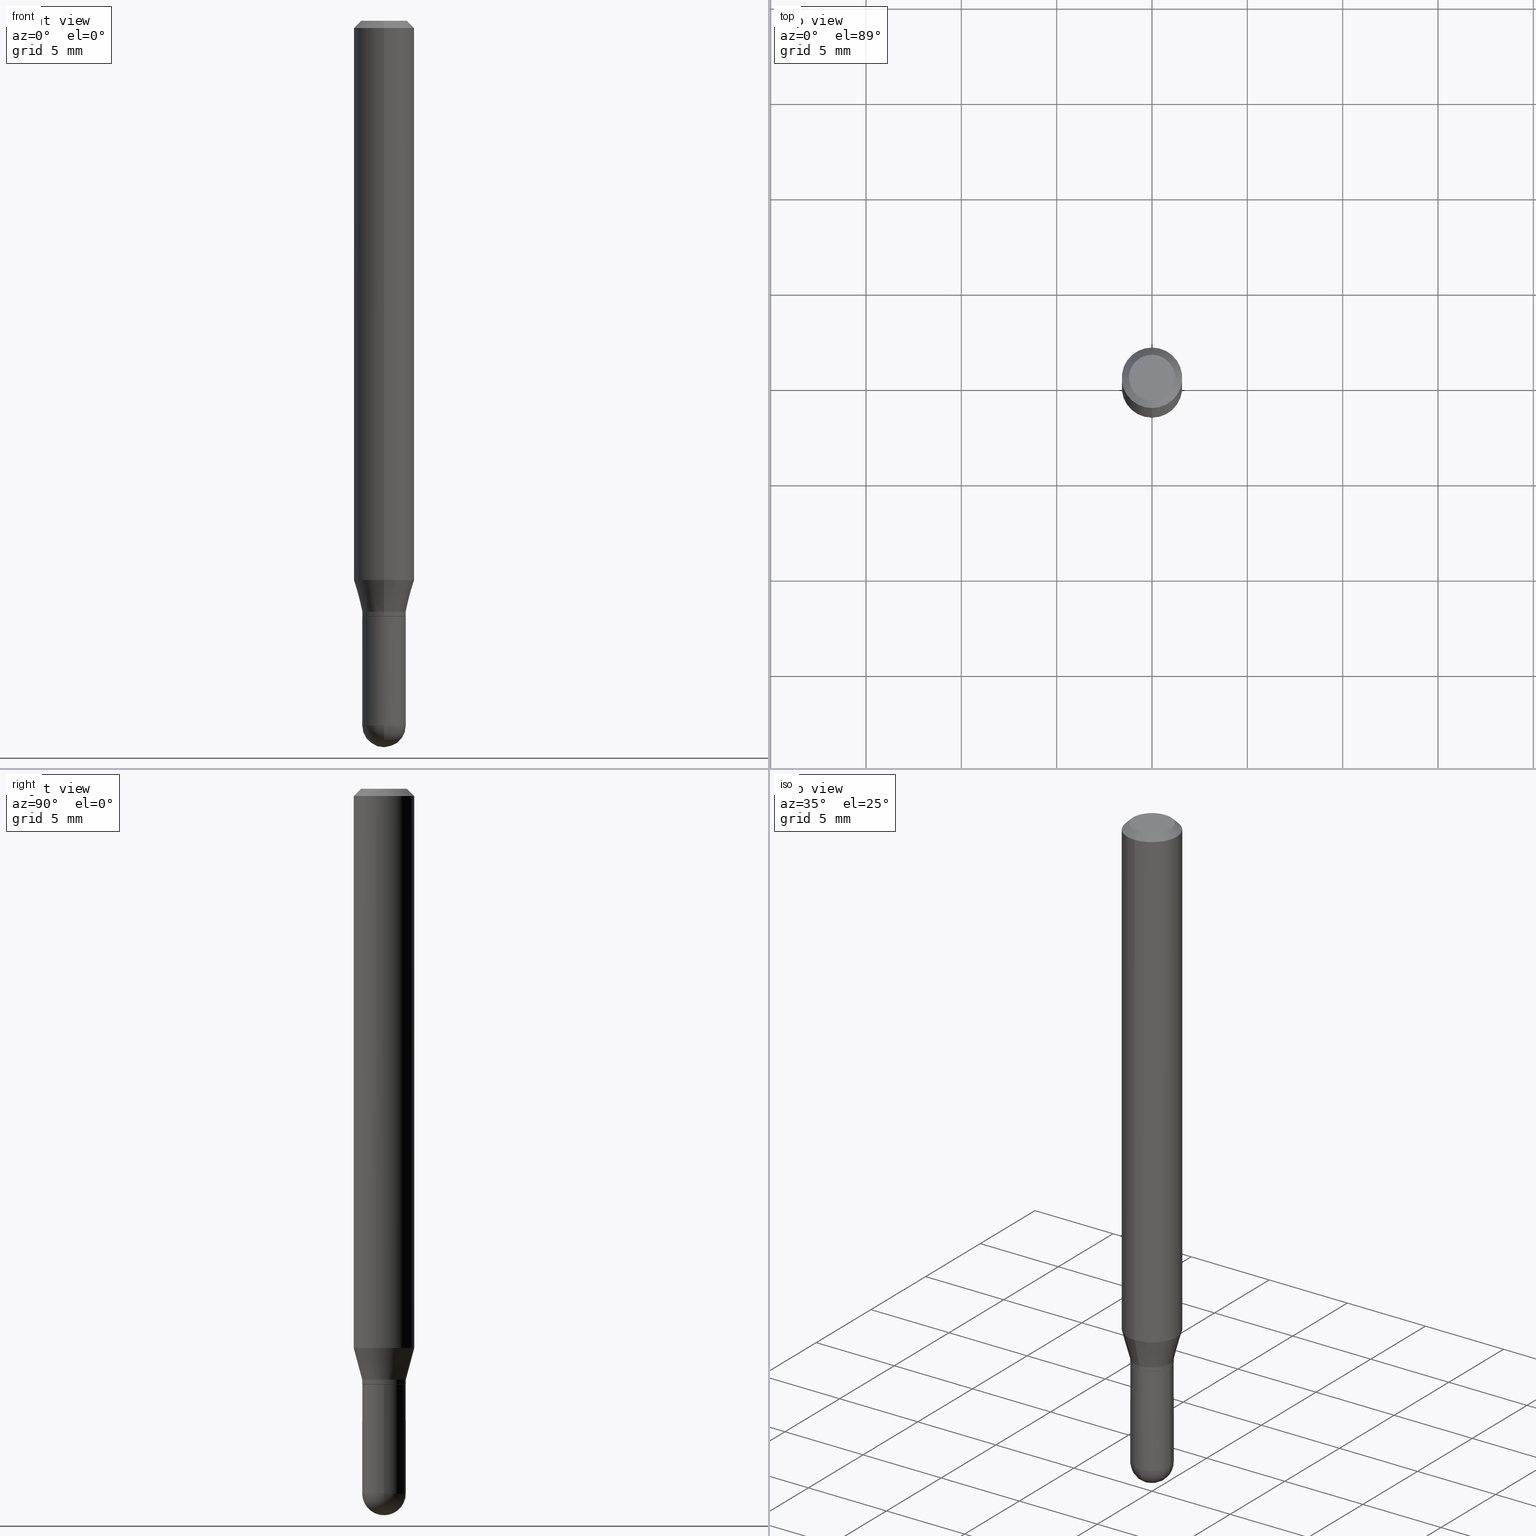
[diagram: canonical four-view strip — front | top / right | iso, engineering-drawing reading convention]
A machine part, canonical four-view strip (front | top / right | iso — engineering-drawing reading convention). The complete STEP part file that produces these views, byte-faithful:
ISO-10303-21;
HEADER;
FILE_DESCRIPTION (( 'STEP AP203' ),
    '1' );
FILE_NAME ('00944.STEP',
    '2024-03-07T19:06:21',
    ( '' ),
    ( '' ),
    'SwSTEP 2.0',
    'SolidWorks 2023',
    '' );
FILE_SCHEMA (( 'CONFIG_CONTROL_DESIGN' ));
ENDSEC;

DATA;
#1 = DIRECTION ( 'NONE',  ( -2.445450573677672764E-29, 3.491507448831563559E-15, 1.000000000000000000 ) ) ;
#2 = EDGE_CURVE ( 'NONE', #341, #457, #215, .T. ) ;
#3 = DIRECTION ( 'NONE',  ( 2.445450573677672483E-29, -3.491507448831563559E-15, -1.000000000000000000 ) ) ;
#4 = PERSON_AND_ORGANIZATION_ROLE ( 'design_supplier' ) ;
#5 = ORIENTED_EDGE ( 'NONE', *, *, #12, .T. ) ;
#6 =( NAMED_UNIT ( * ) PLANE_ANGLE_UNIT ( ) SI_UNIT ( $, .RADIAN. ) );
#7 = CARTESIAN_POINT ( 'NONE',  ( 3.558157112999374623E-29, -5.080105348016777334E-15, -1.455000000000000293 ) ) ;
#8 = AXIS2_PLACEMENT_3D ( 'NONE', #91, #414, #449 ) ;
#9 = PERSON_AND_ORGANIZATION ( #242, #185 ) ;
#10 = DIRECTION ( 'NONE',  ( -2.445468806185136597E-29, 3.491481338843145583E-15, 1.000000000000000000 ) ) ;
#11 = DIRECTION ( 'NONE',  ( -6.982962677686265922E-15, -1.000000000000000000, 3.491507448831563165E-15 ) ) ;
#12 = EDGE_CURVE ( 'NONE', #103, #505, #108, .T. ) ;
#13 = CARTESIAN_POINT ( 'NONE',  ( -0.04500000000000001221, -4.367569466304877886E-15, -1.455000000000000293 ) ) ;
#14 = APPLICATION_CONTEXT ( 'configuration controlled 3d designs of mechanical parts and assemblies' ) ;
#15 = SPHERICAL_SURFACE ( 'NONE', #217, 0.04499999999999998446 ) ;
#16 = ORIENTED_EDGE ( 'NONE', *, *, #342, .T. ) ;
#17 = APPROVAL_DATE_TIME ( #364, #43 ) ;
#18 = CIRCLE ( 'NONE', #508, 0.06250000000000000000 ) ;
#19 = VECTOR ( 'NONE', #39, 39.37007874015748143 ) ;
#20 = DIRECTION ( 'NONE',  ( -1.807323732225328562E-15, -0.2588190451025179639, 0.9659258262890690894 ) ) ;
#21 = EDGE_LOOP ( 'NONE', ( #152, #5, #261, #186 ) ) ;
#22 = ORIENTED_EDGE ( 'NONE', *, *, #72, .F. ) ;
#23 = VERTEX_POINT ( 'NONE', #265 ) ;
#24 = AXIS2_PLACEMENT_3D ( 'NONE', #77, #10, #73 ) ;
#25 = EDGE_LOOP ( 'NONE', ( #144, #487, #149, #181 ) ) ;
#26 = PLANE ( 'NONE',  #222 ) ;
#27 = EDGE_LOOP ( 'NONE', ( #64, #146, #343, #220 ) ) ;
#28 = ORIENTED_EDGE ( 'NONE', *, *, #342, .F. ) ;
#29 = APPROVAL ( #249, 'UNSPECIFIED' ) ;
#30 = AXIS2_PLACEMENT_3D ( 'NONE', #248, #216, #443 ) ;
#31 = AXIS2_PLACEMENT_3D ( 'NONE', #167, #281, #239 ) ;
#32 = ORIENTED_EDGE ( 'NONE', *, *, #482, .T. ) ;
#33 = ORIENTED_EDGE ( 'NONE', *, *, #213, .F. ) ;
#34 = CARTESIAN_POINT ( 'NONE',  ( 2.983449699886760934E-29, -4.259639087574507613E-15, -1.220000000000000195 ) ) ;
#35 = AXIS2_PLACEMENT_3D ( 'NONE', #355, #272, #318 ) ;
#36 = VECTOR ( 'NONE', #1, 39.37007874015748143 ) ;
#37 = FACE_OUTER_BOUND ( 'NONE', #99, .T. ) ;
#38 = EDGE_CURVE ( 'NONE', #135, #23, #147, .T. ) ;
#39 = DIRECTION ( 'NONE',  ( 4.937700262164548042E-15, 0.7071067811865451302, -0.7071067811865499042 ) ) ;
#40 = FACE_OUTER_BOUND ( 'NONE', #416, .T. ) ;
#41 = ADVANCED_FACE ( 'NONE', ( #423 ), #413, .T. ) ;
#42 = CARTESIAN_POINT ( 'NONE',  ( -3.773273898774340269E-16, -0.04749999999999999362, 1.569875244521179969E-16 ) ) ;
#43 = APPROVAL ( #391, 'UNSPECIFIED' ) ;
#44 = PERSON_AND_ORGANIZATION ( #242, #185 ) ;
#45 = CARTESIAN_POINT ( 'NONE',  ( 2.823735148590400292E-29, -4.031605631678729186E-15, -1.154689110867545221 ) ) ;
#46 = CARTESIAN_POINT ( 'NONE',  ( 3.840629472727447874E-16, 0.04749999999999999362, -1.747056831868805136E-16 ) ) ;
#47 = AXIS2_PLACEMENT_3D ( 'NONE', #171, #286, #180 ) ;
#48 = CARTESIAN_POINT ( 'NONE',  ( 4.364351673553919652E-16, 0.06249999999999995143, -0.01500000000000022669 ) ) ;
#49 = FACE_OUTER_BOUND ( 'NONE', #259, .T. ) ;
#50 = EDGE_CURVE ( 'NONE', #408, #461, #60, .T. ) ;
#51 = COORDINATED_UNIVERSAL_TIME_OFFSET ( 5, 0, .BEHIND. ) ;
#52 = CARTESIAN_POINT ( 'NONE',  ( 3.558157112999374623E-29, -5.080105348016777334E-15, -1.455000000000000293 ) ) ;
#53 = CARTESIAN_POINT ( 'NONE',  ( -3.142333204958524493E-16, -0.04500000000000436984, -1.229500000000000037 ) ) ;
#54 = AXIS2_PLACEMENT_3D ( 'NONE', #126, #280, #435 ) ;
#55 = VERTEX_POINT ( 'NONE', #104 ) ;
#56 = FACE_OUTER_BOUND ( 'NONE', #330, .T. ) ;
#57 = VERTEX_POINT ( 'NONE', #304 ) ;
#58 = EDGE_LOOP ( 'NONE', ( #109, #101, #500, #62 ) ) ;
#59 = EDGE_CURVE ( 'NONE', #191, #57, #332, .T. ) ;
#60 = CIRCLE ( 'NONE', #452, 0.04449999999999999789 ) ;
#61 = ORIENTED_EDGE ( 'NONE', *, *, #392, .T. ) ;
#62 = ORIENTED_EDGE ( 'NONE', *, *, #174, .F. ) ;
#63 = ADVANCED_FACE ( 'NONE', ( #227 ), #221, .T. ) ;
#64 = ORIENTED_EDGE ( 'NONE', *, *, #219, .F. ) ;
#65 = PRODUCT_DEFINITION_SHAPE ( 'NONE', 'NONE',  #257 ) ;
#66 = DIRECTION ( 'NONE',  ( 1.000000000000000000, -6.982962677686266711E-15, 0.000000000000000000 ) ) ;
#67 = CIRCLE ( 'NONE', #87, 0.04500000000000001221 ) ;
#68 = EDGE_CURVE ( 'NONE', #505, #55, #18, .T. ) ;
#69 = ORIENTED_EDGE ( 'NONE', *, *, #2, .F. ) ;
#70 = DIRECTION ( 'NONE',  ( -4.851104656540964275E-15, -0.7071067811865500152, -0.7071067811865450192 ) ) ;
#71 = DIRECTION ( 'NONE',  ( -2.445450573677672764E-29, 3.491507448831563559E-15, 1.000000000000000000 ) ) ;
#72 = EDGE_CURVE ( 'NONE', #299, #191, #311, .T. ) ;
#73 = DIRECTION ( 'NONE',  ( 1.000000000000000000, -6.982962677686269077E-15, 0.000000000000000000 ) ) ;
#74 = AXIS2_PLACEMENT_3D ( 'NONE', #353, #3, #458 ) ;
#75 = AXIS2_PLACEMENT_3D ( 'NONE', #52, #136, #289 ) ;
#76 = CARTESIAN_POINT ( 'NONE',  ( -3.197442310920094252E-16, -0.04500000000000508454, -1.454999999999999849 ) ) ;
#77 = CARTESIAN_POINT ( 'NONE',  ( 3.007926631607718216E-29, -4.294522046777069173E-15, -1.230000000000000204 ) ) ;
#78 = CARTESIAN_POINT ( 'NONE',  ( 0.000000000000000000, 0.000000000000000000, 0.000000000000000000 ) ) ;
#79 = CC_DESIGN_PERSON_AND_ORGANIZATION_ASSIGNMENT ( #197, #115, ( #502 ) ) ;
#80 = PERSON_AND_ORGANIZATION ( #242, #185 ) ;
#81 =( NAMED_UNIT ( * ) SI_UNIT ( $, .STERADIAN. ) SOLID_ANGLE_UNIT ( ) );
#82 = CARTESIAN_POINT ( 'NONE',  ( 3.007904205623538192E-29, -4.294554162062823521E-15, -1.230000000000000204 ) ) ;
#83 = DIRECTION ( 'NONE',  ( 5.024295867788190974E-15, 0.7071067811865681119, 0.7071067811865270336 ) ) ;
#84 = ADVANCED_FACE ( 'NONE', ( #390 ), #112, .T. ) ;
#85 = CIRCLE ( 'NONE', #54, 0.06250000000000000000 ) ;
#86 = DIRECTION ( 'NONE',  ( -2.445450573677672764E-29, 3.491507448831563559E-15, 1.000000000000000000 ) ) ;
#87 = AXIS2_PLACEMENT_3D ( 'NONE', #398, #327, #250 ) ;
#88 = PERSON_AND_ORGANIZATION_ROLE ( 'creator' ) ;
#89 = ORIENTED_EDGE ( 'NONE', *, *, #59, .T. ) ;
#90 = CARTESIAN_POINT ( 'NONE',  ( 0.000000000000000000, 0.000000000000000000, 0.000000000000000000 ) ) ;
#91 = CARTESIAN_POINT ( 'NONE',  ( 3.007904205623538192E-29, -4.294554162062823521E-15, -1.230000000000000204 ) ) ;
#92 = ORIENTED_EDGE ( 'NONE', *, *, #369, .T. ) ;
#93 = LINE ( 'NONE', #371, #368 ) ;
#94 = ORIENTED_EDGE ( 'NONE', *, *, #72, .T. ) ;
#95 = CARTESIAN_POINT ( 'NONE',  ( -3.107418391570087519E-16, -0.04450000000000429307, -1.229999999999999982 ) ) ;
#96 = CIRCLE ( 'NONE', #8, 0.04449999999999999789 ) ;
#97 = VECTOR ( 'NONE', #118, 39.37007874015748143 ) ;
#98 =( LENGTH_UNIT ( ) NAMED_UNIT ( * ) SI_UNIT ( $, .METRE. ) );
#99 = EDGE_LOOP ( 'NONE', ( #111, #182 ) ) ;
#100 = ADVANCED_FACE ( 'NONE', ( #359 ), #278, .T. ) ;
#101 = ORIENTED_EDGE ( 'NONE', *, *, #145, .T. ) ;
#102 = EDGE_CURVE ( 'NONE', #457, #410, #480, .T. ) ;
#103 = VERTEX_POINT ( 'NONE', #42 ) ;
#104 = CARTESIAN_POINT ( 'NONE',  ( 4.440892098500909166E-16, 0.06249999999999993755, -0.01500000000000022669 ) ) ;
#105 = AXIS2_PLACEMENT_3D ( 'NONE', #34, #86, #383 ) ;
#106 = PRODUCT_DEFINITION_FORMATION_WITH_SPECIFIED_SOURCE ( 'ANY', '', #502, .NOT_KNOWN. ) ;
#107 = CYLINDRICAL_SURFACE ( 'NONE', #47, 0.04500000000000000527 ) ;
#108 = LINE ( 'NONE', #506, #418 ) ;
#109 = ORIENTED_EDGE ( 'NONE', *, *, #495, .F. ) ;
#110 = CARTESIAN_POINT ( 'NONE',  ( 2.983449699886760934E-29, -4.259639087574507613E-15, -1.220000000000000195 ) ) ;
#111 = ORIENTED_EDGE ( 'NONE', *, *, #417, .T. ) ;
#112 = CONICAL_SURFACE ( 'NONE', #440, 0.04449999999999999789, 0.7853981633974739252 ) ;
#113 = VECTOR ( 'NONE', #307, 39.37007874015748143 ) ;
#114 = EDGE_LOOP ( 'NONE', ( #363, #334, #463, #251 ) ) ;
#115 = PERSON_AND_ORGANIZATION_ROLE ( 'design_owner' ) ;
#116 = ADVANCED_FACE ( 'NONE', ( #204 ), #331, .T. ) ;
#117 = CARTESIAN_POINT ( 'NONE',  ( 2.983449699886760934E-29, -4.259639087574507613E-15, -1.220000000000000195 ) ) ;
#118 = DIRECTION ( 'NONE',  ( -2.445450573677672764E-29, 3.491507448831563559E-15, 1.000000000000000000 ) ) ;
#119 = DIRECTION ( 'NONE',  ( 2.438088387897960049E-29, -3.491481338843145188E-15, -1.000000000000000000 ) ) ;
#120 = CARTESIAN_POINT ( 'NONE',  ( 3.668175860516511966E-31, -5.237261173247348568E-17, -0.01500000000000000812 ) ) ;
#121 = CONICAL_SURFACE ( 'NONE', #30, 0.04500000000000006078, 0.2617993877991500740 ) ;
#122 = EDGE_CURVE ( 'NONE', #258, #57, #477, .T. ) ;
#123 = LOCAL_TIME ( 14, 6, 21.00000000000000000, #51 ) ;
#124 = DIRECTION ( 'NONE',  ( -6.982962677686265922E-15, -1.000000000000000000, 3.035386659626955187E-15 ) ) ;
#125 = COORDINATED_UNIVERSAL_TIME_OFFSET ( 5, 0, .BEHIND. ) ;
#126 = CARTESIAN_POINT ( 'NONE',  ( 3.668175860516511966E-31, -5.237261173247348568E-17, -0.01500000000000000812 ) ) ;
#127 = APPROVAL_ROLE ( '' ) ;
#128 = CARTESIAN_POINT ( 'NONE',  ( 3.006681480336699048E-29, -4.292808408338407213E-15, -1.229500000000000037 ) ) ;
#129 = CYLINDRICAL_SURFACE ( 'NONE', #297, 0.04500000000000006078 ) ;
#130 = CALENDAR_DATE ( 2024, 7, 3 ) ;
#131 = LINE ( 'NONE', #279, #36 ) ;
#132 = VECTOR ( 'NONE', #387, 39.37007874015748143 ) ;
#133 = DIRECTION ( 'NONE',  ( -1.000000000000000000, 6.982962677686265922E-15, -4.883557194083112340E-29 ) ) ;
#134 = AXIS2_PLACEMENT_3D ( 'NONE', #397, #450, #360 ) ;
#135 = VERTEX_POINT ( 'NONE', #240 ) ;
#136 = DIRECTION ( 'NONE',  ( -2.445468806185136597E-29, 3.491481338843145583E-15, 1.000000000000000000 ) ) ;
#137 = VERTEX_POINT ( 'NONE', #46 ) ;
#138 = CARTESIAN_POINT ( 'NONE',  ( 0.000000000000000000, 0.000000000000000000, 0.000000000000000000 ) ) ;
#139 = EDGE_CURVE ( 'NONE', #299, #258, #196, .T. ) ;
#140 = ORIENTED_EDGE ( 'NONE', *, *, #59, .F. ) ;
#141 = UNCERTAINTY_MEASURE_WITH_UNIT (LENGTH_MEASURE( 1.000000000000000082E-05 ), #236, 'distance_accuracy_value', 'NONE');
#142 = CLOSED_SHELL ( 'NONE', ( #194, #84, #382, #335, #116, #268, #448, #499, #238, #351, #63, #100 ) ) ;
#143 = APPROVAL_PERSON_ORGANIZATION ( #288, #43, #388 ) ;
#144 = ORIENTED_EDGE ( 'NONE', *, *, #422, .T. ) ;
#145 = EDGE_CURVE ( 'NONE', #292, #462, #150, .T. ) ;
#146 = ORIENTED_EDGE ( 'NONE', *, *, #213, .T. ) ;
#147 = LINE ( 'NONE', #296, #207 ) ;
#148 = DIRECTION ( 'NONE',  ( -1.000000000000000000, 6.982962677686265922E-15, -4.883557194083112340E-29 ) ) ;
#149 = ORIENTED_EDGE ( 'NONE', *, *, #68, .F. ) ;
#150 = CIRCLE ( 'NONE', #465, 0.06250000000000000000 ) ;
#151 = LOCAL_TIME ( 14, 6, 21.00000000000000000, #252 ) ;
#152 = ORIENTED_EDGE ( 'NONE', *, *, #302, .F. ) ;
#153 = ORIENTED_EDGE ( 'NONE', *, *, #166, .T. ) ;
#154 = DIRECTION ( 'NONE',  ( -6.982962677686265922E-15, -1.000000000000000000, 3.069492127712655324E-15 ) ) ;
#155 = CIRCLE ( 'NONE', #105, 0.04500000000000006078 ) ;
#156 = DIRECTION ( 'NONE',  ( -2.445450573677672764E-29, 3.491507448831563559E-15, 1.000000000000000000 ) ) ;
#157 = LINE ( 'NONE', #352, #412 ) ;
#158 = CARTESIAN_POINT ( 'NONE',  ( -3.142333204958525479E-16, -0.04500000000000432127, -1.219999999999999973 ) ) ;
#159 = EDGE_CURVE ( 'NONE', #410, #23, #459, .T. ) ;
#160 = APPLICATION_PROTOCOL_DEFINITION ( 'international standard', 'config_control_design', 1994, #214 ) ;
#161 = DIRECTION ( 'NONE',  ( -6.982962677686265922E-15, -1.000000000000000000, 3.035386659626955187E-15 ) ) ;
#162 = DIRECTION ( 'NONE',  ( -2.445450573677672764E-29, 3.491507448831563559E-15, 1.000000000000000000 ) ) ;
#163 = AXIS2_PLACEMENT_3D ( 'NONE', #415, #193, #66 ) ;
#164 = CC_DESIGN_APPROVAL ( #43, ( #106 ) ) ;
#165 = DIRECTION ( 'NONE',  ( -2.445468806185136597E-29, 3.491481338843145583E-15, 1.000000000000000000 ) ) ;
#166 = EDGE_CURVE ( 'NONE', #230, #135, #245, .T. ) ;
#167 = CARTESIAN_POINT ( 'NONE',  ( 3.554308864698067654E-29, -5.085616258612941015E-15, -1.455000000000000293 ) ) ;
#168 = CC_DESIGN_DATE_AND_TIME_ASSIGNMENT ( #433, #437, ( #257 ) ) ;
#169 = CARTESIAN_POINT ( 'NONE',  ( 2.823735148590400292E-29, -4.031605631678729186E-15, -1.154689110867545221 ) ) ;
#170 = CARTESIAN_POINT ( 'NONE',  ( -0.04499999999999999833, -4.367569466304877886E-15, -1.230000000000000204 ) ) ;
#171 = CARTESIAN_POINT ( 'NONE',  ( 0.000000000000000000, 0.000000000000000000, 0.000000000000000000 ) ) ;
#172 = EDGE_LOOP ( 'NONE', ( #374, #61, #94, #33 ) ) ;
#173 = DATE_AND_TIME ( #399, #151 ) ;
#174 = EDGE_CURVE ( 'NONE', #55, #505, #85, .T. ) ;
#175 = AXIS2_PLACEMENT_3D ( 'NONE', #78, #472, #11 ) ;
#176 = FACE_OUTER_BOUND ( 'NONE', #447, .T. ) ;
#177 = AXIS2_PLACEMENT_3D ( 'NONE', #138, #321, #362 ) ;
#178 = ORIENTED_EDGE ( 'NONE', *, *, #2, .T. ) ;
#179 = ORIENTED_EDGE ( 'NONE', *, *, #159, .F. ) ;
#180 = DIRECTION ( 'NONE',  ( 1.000000000000000000, -6.982962677686267499E-15, 4.876176775795935793E-29 ) ) ;
#181 = ORIENTED_EDGE ( 'NONE', *, *, #473, .F. ) ;
#182 = ORIENTED_EDGE ( 'NONE', *, *, #159, .T. ) ;
#183 = ORIENTED_EDGE ( 'NONE', *, *, #38, .T. ) ;
#184 = LOCAL_TIME ( 14, 6, 21.00000000000000000, #511 ) ;
#185 = ORGANIZATION ( 'UNSPECIFIED', 'UNSPECIFIED', '' ) ;
#186 = ORIENTED_EDGE ( 'NONE', *, *, #396, .F. ) ;
#187 = DIRECTION ( 'NONE',  ( -2.445450573677672764E-29, 3.491507448831563559E-15, 1.000000000000000000 ) ) ;
#188 = DIRECTION ( 'NONE',  ( -2.445450573677672483E-29, 3.491507448831563559E-15, 1.000000000000000000 ) ) ;
#189 = ORIENTED_EDGE ( 'NONE', *, *, #392, .F. ) ;
#190 = CARTESIAN_POINT ( 'NONE',  ( 3.007904205623538192E-29, -4.294554162062823521E-15, -1.230000000000000204 ) ) ;
#191 = VERTEX_POINT ( 'NONE', #158 ) ;
#192 = PERSON_AND_ORGANIZATION ( #242, #185 ) ;
#193 = DIRECTION ( 'NONE',  ( -2.445468806185136597E-29, 3.491481338843145583E-15, 1.000000000000000000 ) ) ;
#194 = ADVANCED_FACE ( 'NONE', ( #381 ), #129, .T. ) ;
#195 = CARTESIAN_POINT ( 'NONE',  ( 3.197442310920752950E-16, 0.04499999999999580030, -1.220000000000000195 ) ) ;
#196 = CIRCLE ( 'NONE', #275, 0.04500000000000006078 ) ;
#197 = PERSON_AND_ORGANIZATION ( #242, #185 ) ;
#198 = CIRCLE ( 'NONE', #24, 0.04499999999999999833 ) ;
#199 = DIRECTION ( 'NONE',  ( 2.445450573677672764E-29, -3.491507448831563559E-15, -1.000000000000000000 ) ) ;
#200 = PLANE ( 'NONE',  #384 ) ;
#201 = DIRECTION ( 'NONE',  ( 1.000000000000000000, -6.982962677686265922E-15, 4.883557194083112340E-29 ) ) ;
#202 = PLANE ( 'NONE',  #74 ) ;
#203 = CALENDAR_DATE ( 2024, 7, 3 ) ;
#204 = FACE_OUTER_BOUND ( 'NONE', #490, .T. ) ;
#205 = EDGE_LOOP ( 'NONE', ( #366, #295, #140, #22 ) ) ;
#206 = LINE ( 'NONE', #471, #97 ) ;
#207 = VECTOR ( 'NONE', #225, 39.37007874015748143 ) ;
#208 = CARTESIAN_POINT ( 'NONE',  ( 0.000000000000000000, 0.000000000000000000, 0.000000000000000000 ) ) ;
#209 = CARTESIAN_POINT ( 'NONE',  ( 3.179678742526750430E-16, 0.04449999999999570272, -1.230000000000000204 ) ) ;
#210 = CARTESIAN_POINT ( 'NONE',  ( 3.142333204959174810E-16, 0.04499999999999491213, -1.455000000000000515 ) ) ;
#211 = APPROVAL_DATE_TIME ( #173, #29 ) ;
#212 = CARTESIAN_POINT ( 'NONE',  ( 2.166444072121849757E-46, -3.093154160100163242E-32, -8.859079367381244516E-18 ) ) ;
#213 = EDGE_CURVE ( 'NONE', #57, #191, #155, .T. ) ;
#214 = APPLICATION_CONTEXT ( 'configuration controlled 3d designs of mechanical parts and assemblies' ) ;
#215 = CIRCLE ( 'NONE', #163, 0.04500000000000001221 ) ;
#216 = DIRECTION ( 'NONE',  ( -2.445450573677672764E-29, 3.491507448831563559E-15, 1.000000000000000000 ) ) ;
#217 = AXIS2_PLACEMENT_3D ( 'NONE', #325, #133, #488 ) ;
#218 = ORIENTED_EDGE ( 'NONE', *, *, #417, .F. ) ;
#219 = EDGE_CURVE ( 'NONE', #57, #292, #470, .T. ) ;
#220 = ORIENTED_EDGE ( 'NONE', *, *, #145, .F. ) ;
#221 = CONICAL_SURFACE ( 'NONE', #501, 0.04449999999999999789, 0.7853981633974739252 ) ;
#222 = AXIS2_PLACEMENT_3D ( 'NONE', #375, #188, #484 ) ;
#223 = SPHERICAL_SURFACE ( 'NONE', #314, 0.04499999999999998446 ) ;
#224 = CARTESIAN_POINT ( 'NONE',  ( 3.007904205623538192E-29, -4.294554162062823521E-15, -1.230000000000000204 ) ) ;
#225 = DIRECTION ( 'NONE',  ( -2.445468806185136877E-29, 3.491481338843145188E-15, 1.000000000000000000 ) ) ;
#226 = ADVANCED_FACE ( 'NONE', ( #37 ), #200, .F. ) ;
#227 = FACE_OUTER_BOUND ( 'NONE', #336, .T. ) ;
#228 = AXIS2_PLACEMENT_3D ( 'NONE', #212, #291, #253 ) ;
#229 = APPLICATION_PROTOCOL_DEFINITION ( 'international standard', 'config_control_design', 1994, #14 ) ;
#230 = VERTEX_POINT ( 'NONE', #76 ) ;
#231 = DIRECTION ( 'NONE',  ( 1.000000000000000000, -6.982962677686267499E-15, 4.876176775795935793E-29 ) ) ;
#232 = PERSON_AND_ORGANIZATION ( #242, #185 ) ;
#233 = DIRECTION ( 'NONE',  ( -6.982962677686265922E-15, -1.000000000000000000, 3.069492127712655324E-15 ) ) ;
#234 = CLOSED_SHELL ( 'NONE', ( #41, #361, #226, #348, #319 ) ) ;
#235 = CONICAL_SURFACE ( 'NONE', #339, 0.06250000000000000000, 0.7853981633974483900 ) ;
#236 =( CONVERSION_BASED_UNIT ( 'INCH', #406 ) LENGTH_UNIT ( ) NAMED_UNIT ( #503 ) );
#237 = DIRECTION ( 'NONE',  ( -6.982962677686265922E-15, -1.000000000000000000, 3.483106191921935554E-15 ) ) ;
#238 = ADVANCED_FACE ( 'NONE', ( #40 ), #202, .F. ) ;
#239 = DIRECTION ( 'NONE',  ( -7.105427357600999492E-15, -1.000000000000000000, 0.000000000000000000 ) ) ;
#240 = CARTESIAN_POINT ( 'NONE',  ( 0.04500000000000001221, -5.001547017892805729E-15, -1.455000000000000293 ) ) ;
#241 = DIRECTION ( 'NONE',  ( 6.982962677686265922E-15, 1.000000000000000000, -3.483106191921935554E-15 ) ) ;
#242 = PERSON ( 'UNSPECIFIED', 'UNSPECIFIED', 'UNSPECIFIED', ('UNSPECIFIED'), ('UNSPECIFIED'), ('UNSPECIFIED') ) ;
#243 = CARTESIAN_POINT ( 'NONE',  ( 3.197442310920454169E-16, 0.04500000000000006078, -1.571178351974205495E-16 ) ) ;
#244 = DATE_AND_TIME ( #284, #419 ) ;
#245 = CIRCLE ( 'NONE', #356, 0.04500000000000001221 ) ;
#246 = LINE ( 'NONE', #48, #19 ) ;
#247 = CONICAL_SURFACE ( 'NONE', #346, 0.06250000000000000000, 0.7853981633974483900 ) ;
#248 = CARTESIAN_POINT ( 'NONE',  ( 2.983449699886760934E-29, -4.259639087574507613E-15, -1.220000000000000195 ) ) ;
#249 = APPROVAL_STATUS ( 'not_yet_approved' ) ;
#250 = DIRECTION ( 'NONE',  ( 1.000000000000000000, -6.982962677686266711E-15, 0.000000000000000000 ) ) ;
#251 = ORIENTED_EDGE ( 'NONE', *, *, #174, .T. ) ;
#252 = COORDINATED_UNIVERSAL_TIME_OFFSET ( 5, 0, .BEHIND. ) ;
#253 = DIRECTION ( 'NONE',  ( -6.982962677686266711E-15, -1.000000000000000000, 3.491507448831563559E-15 ) ) ;
#254 = CARTESIAN_POINT ( 'NONE',  ( 3.554308864698067654E-29, -5.085616258612941015E-15, -1.455000000000000293 ) ) ;
#255 = AXIS2_PLACEMENT_3D ( 'NONE', #45, #317, #479 ) ;
#256 = ORIENTED_EDGE ( 'NONE', *, *, #310, .T. ) ;
#257 = PRODUCT_DEFINITION ( 'UNKNOWN', '', #106, #454 ) ;
#258 = VERTEX_POINT ( 'NONE', #337 ) ;
#259 = EDGE_LOOP ( 'NONE', ( #445, #92, #153, #183, #179 ) ) ;
#260 = VECTOR ( 'NONE', #345, 39.37007874015748143 ) ;
#261 = ORIENTED_EDGE ( 'NONE', *, *, #68, .T. ) ;
#262 = CARTESIAN_POINT ( 'NONE',  ( 4.440892098500907193E-16, 0.06249999999999596156, -1.154689110867545443 ) ) ;
#263 = ORIENTED_EDGE ( 'NONE', *, *, #166, .F. ) ;
#264 = DIRECTION ( 'NONE',  ( -6.982962677686265922E-15, -1.000000000000000000, 3.035386659626955187E-15 ) ) ;
#265 = CARTESIAN_POINT ( 'NONE',  ( 0.04499999999999999833, -4.608755367272951648E-15, -1.230000000000000204 ) ) ;
#266 = AXIS2_PLACEMENT_3D ( 'NONE', #110, #466, #264 ) ;
#267 = AXIS2_PLACEMENT_3D ( 'NONE', #128, #431, #161 ) ;
#268 = ADVANCED_FACE ( 'NONE', ( #365 ), #121, .T. ) ;
#269 = DIRECTION ( 'NONE',  ( -2.445450573677672764E-29, 3.491507448831563559E-15, 1.000000000000000000 ) ) ;
#270 = EDGE_CURVE ( 'NONE', #191, #462, #93, .T. ) ;
#271 = DATE_AND_TIME ( #468, #324 ) ;
#272 = DIRECTION ( 'NONE',  ( -2.445468806185136597E-29, 3.491481338843145583E-15, 1.000000000000000000 ) ) ;
#273 = FACE_OUTER_BOUND ( 'NONE', #114, .T. ) ;
#274 = DIRECTION ( 'NONE',  ( -6.982962677686265922E-15, -1.000000000000000000, 4.370956789862821150E-15 ) ) ;
#275 = AXIS2_PLACEMENT_3D ( 'NONE', #510, #428, #309 ) ;
#276 = MECHANICAL_CONTEXT ( 'NONE', #214, 'mechanical' ) ;
#277 = FACE_OUTER_BOUND ( 'NONE', #21, .T. ) ;
#278 = CYLINDRICAL_SURFACE ( 'NONE', #175, 0.04500000000000006078 ) ;
#279 = CARTESIAN_POINT ( 'NONE',  ( 4.440892098500625669E-16, 0.06250000000000000000, -2.182192155519727224E-16 ) ) ;
#280 = DIRECTION ( 'NONE',  ( -2.445450573677672764E-29, 3.491507448831563559E-15, 1.000000000000000000 ) ) ;
#281 = DIRECTION ( 'NONE',  ( -1.000000000000000000, 7.105427357601001070E-15, -4.926315508542082329E-29 ) ) ;
#282 = DIRECTION ( 'NONE',  ( -2.445450573677672764E-29, 3.491507448831563559E-15, 1.000000000000000000 ) ) ;
#283 = ADVANCED_BREP_SHAPE_REPRESENTATION ( '00944', ( #421, #409, #357 ), #378 ) ;
#284 = CALENDAR_DATE ( 2024, 7, 3 ) ;
#285 = CARTESIAN_POINT ( 'NONE',  ( -4.364351673553912750E-16, -0.06250000000000005551, -0.01499999999999979128 ) ) ;
#286 = DIRECTION ( 'NONE',  ( -2.445468806185136597E-29, 3.491481338843145583E-15, 1.000000000000000000 ) ) ;
#287 = ORIENTED_EDGE ( 'NONE', *, *, #270, .F. ) ;
#288 = PERSON_AND_ORGANIZATION ( #242, #185 ) ;
#289 = DIRECTION ( 'NONE',  ( 1.000000000000000000, -6.982962677686266711E-15, 0.000000000000000000 ) ) ;
#290 = ORIENTED_EDGE ( 'NONE', *, *, #310, .F. ) ;
#291 = DIRECTION ( 'NONE',  ( -2.445450573677672764E-29, 3.491507448831563559E-15, 1.000000000000000000 ) ) ;
#292 = VERTEX_POINT ( 'NONE', #262 ) ;
#293 = CIRCLE ( 'NONE', #255, 0.06250000000000000000 ) ;
#294 = ORIENTED_EDGE ( 'NONE', *, *, #422, .F. ) ;
#295 = ORIENTED_EDGE ( 'NONE', *, *, #122, .T. ) ;
#296 = CARTESIAN_POINT ( 'NONE',  ( 0.04500000000000000527, -3.142333204958820809E-16, 2.194279549108171317E-30 ) ) ;
#297 = AXIS2_PLACEMENT_3D ( 'NONE', #208, #282, #439 ) ;
#298 = CIRCLE ( 'NONE', #460, 0.04749999999999999362 ) ;
#299 = VERTEX_POINT ( 'NONE', #53 ) ;
#300 = ORIENTED_EDGE ( 'NONE', *, *, #328, .F. ) ;
#301 = EDGE_LOOP ( 'NONE', ( #489, #32, #300, #263 ) ) ;
#302 = EDGE_CURVE ( 'NONE', #103, #137, #312, .T. ) ;
#303 = APPROVAL_STATUS ( 'not_yet_approved' ) ;
#304 = CARTESIAN_POINT ( 'NONE',  ( 3.819167204710830318E-16, 0.04499999999999580030, -1.220000000000000195 ) ) ;
#305 = CC_DESIGN_DATE_AND_TIME_ASSIGNMENT ( #244, #442, ( #306 ) ) ;
#306 = SECURITY_CLASSIFICATION ( '', '', #313 ) ;
#307 = DIRECTION ( 'NONE',  ( -2.445450573677672764E-29, 3.491507448831563559E-15, 1.000000000000000000 ) ) ;
#308 = DIRECTION ( 'NONE',  ( -2.445450573677672764E-29, 3.491507448831563559E-15, 1.000000000000000000 ) ) ;
#309 = DIRECTION ( 'NONE',  ( -6.982962677686265922E-15, -1.000000000000000000, 3.035386659626955187E-15 ) ) ;
#310 = EDGE_CURVE ( 'NONE', #461, #408, #96, .T. ) ;
#311 = LINE ( 'NONE', #393, #113 ) ;
#312 = CIRCLE ( 'NONE', #228, 0.04749999999999999362 ) ;
#313 = SECURITY_CLASSIFICATION_LEVEL ( 'unclassified' ) ;
#314 = AXIS2_PLACEMENT_3D ( 'NONE', #254, #148, #405 ) ;
#315 = CARTESIAN_POINT ( 'NONE',  ( 2.166444072121849757E-46, -3.093154160100163242E-32, -8.859079367381244516E-18 ) ) ;
#316 = DIRECTION ( 'NONE',  ( 1.000000000000000000, -6.982962677686266711E-15, 0.000000000000000000 ) ) ;
#317 = DIRECTION ( 'NONE',  ( -2.445450573677672764E-29, 3.491507448831563559E-15, 1.000000000000000000 ) ) ;
#318 = DIRECTION ( 'NONE',  ( 1.000000000000000000, -6.982962677686269077E-15, 0.000000000000000000 ) ) ;
#319 = ADVANCED_FACE ( 'NONE', ( #49 ), #107, .T. ) ;
#320 = CARTESIAN_POINT ( 'NONE',  ( 3.668175860516511966E-31, -5.237261173247348568E-17, -0.01500000000000000812 ) ) ;
#321 = DIRECTION ( 'NONE',  ( -2.445450573677672764E-29, 3.491507448831563559E-15, 1.000000000000000000 ) ) ;
#322 = CC_DESIGN_PERSON_AND_ORGANIZATION_ASSIGNMENT ( #354, #4, ( #106 ) ) ;
#323 = ORIENTED_EDGE ( 'NONE', *, *, #139, .F. ) ;
#324 = LOCAL_TIME ( 14, 6, 21.00000000000000000, #507 ) ;
#325 = CARTESIAN_POINT ( 'NONE',  ( 3.554308864698067654E-29, -5.085616258612941015E-15, -1.455000000000000293 ) ) ;
#326 = ORIENTED_EDGE ( 'NONE', *, *, #401, .T. ) ;
#327 = DIRECTION ( 'NONE',  ( -2.445468806185136597E-29, 3.491481338843145583E-15, 1.000000000000000000 ) ) ;
#328 = EDGE_CURVE ( 'NONE', #135, #341, #67, .T. ) ;
#329 = CC_DESIGN_PERSON_AND_ORGANIZATION_ASSIGNMENT ( #232, #347, ( #257 ) ) ;
#330 = EDGE_LOOP ( 'NONE', ( #290, #367 ) ) ;
#331 = CONICAL_SURFACE ( 'NONE', #394, 0.04500000000000006078, 0.2617993877991500740 ) ;
#332 = CIRCLE ( 'NONE', #266, 0.04500000000000006078 ) ;
#333 = AXIS2_PLACEMENT_3D ( 'NONE', #358, #201, #481 ) ;
#334 = ORIENTED_EDGE ( 'NONE', *, *, #436, .F. ) ;
#335 = ADVANCED_FACE ( 'NONE', ( #492 ), #403, .T. ) ;
#336 = EDGE_LOOP ( 'NONE', ( #464, #496, #16, #189 ) ) ;
#337 = CARTESIAN_POINT ( 'NONE',  ( 3.197442310920753937E-16, 0.04499999999999574479, -1.229500000000000259 ) ) ;
#338 = ORIENTED_EDGE ( 'NONE', *, *, #302, .T. ) ;
#339 = AXIS2_PLACEMENT_3D ( 'NONE', #120, #199, #426 ) ;
#340 = ORIENTED_EDGE ( 'NONE', *, *, #38, .F. ) ;
#341 = VERTEX_POINT ( 'NONE', #210 ) ;
#342 = EDGE_CURVE ( 'NONE', #461, #299, #400, .T. ) ;
#343 = ORIENTED_EDGE ( 'NONE', *, *, #270, .T. ) ;
#344 = APPROVAL_ROLE ( '' ) ;
#345 = DIRECTION ( 'NONE',  ( -2.445450573677672764E-29, 3.491507448831563559E-15, 1.000000000000000000 ) ) ;
#346 = AXIS2_PLACEMENT_3D ( 'NONE', #320, #438, #241 ) ;
#347 = PERSON_AND_ORGANIZATION_ROLE ( 'creator' ) ;
#348 = ADVANCED_FACE ( 'NONE', ( #446 ), #223, .T. ) ;
#349 = DIRECTION ( 'NONE',  ( -6.982962677686266711E-15, -1.000000000000000000, 3.491507448831563559E-15 ) ) ;
#350 = CARTESIAN_POINT ( 'NONE',  ( 3.142333204959120083E-16, 0.04499999999999570316, -1.230000000000000204 ) ) ;
#351 = ADVANCED_FACE ( 'NONE', ( #56 ), #26, .F. ) ;
#352 = CARTESIAN_POINT ( 'NONE',  ( 3.161915174132745937E-16, 0.04449999999999570272, -1.230000000000000204 ) ) ;
#353 = CARTESIAN_POINT ( 'NONE',  ( 3.316907271900976096E-16, 0.04749999999999999362, -1.702761435031898844E-16 ) ) ;
#354 = PERSON_AND_ORGANIZATION ( #242, #185 ) ;
#355 = CARTESIAN_POINT ( 'NONE',  ( 3.007926631607718216E-29, -4.294522046777069173E-15, -1.230000000000000204 ) ) ;
#356 = AXIS2_PLACEMENT_3D ( 'NONE', #7, #165, #316 ) ;
#357 = AXIS2_PLACEMENT_3D ( 'NONE', #90, #483, #402 ) ;
#358 = CARTESIAN_POINT ( 'NONE',  ( 3.554308864698067654E-29, -5.085616258612941015E-15, -1.455000000000000293 ) ) ;
#359 = FACE_OUTER_BOUND ( 'NONE', #172, .T. ) ;
#360 = DIRECTION ( 'NONE',  ( -6.982962677686265922E-15, -1.000000000000000000, 3.491507448831563559E-15 ) ) ;
#361 = ADVANCED_FACE ( 'NONE', ( #176 ), #15, .T. ) ;
#362 = DIRECTION ( 'NONE',  ( -6.982962677686265922E-15, -1.000000000000000000, 3.491507448831563559E-15 ) ) ;
#363 = ORIENTED_EDGE ( 'NONE', *, *, #12, .F. ) ;
#364 = DATE_AND_TIME ( #203, #123 ) ;
#365 = FACE_OUTER_BOUND ( 'NONE', #27, .T. ) ;
#366 = ORIENTED_EDGE ( 'NONE', *, *, #139, .T. ) ;
#367 = ORIENTED_EDGE ( 'NONE', *, *, #50, .F. ) ;
#368 = VECTOR ( 'NONE', #20, 39.37007874015748854 ) ;
#369 = EDGE_CURVE ( 'NONE', #457, #230, #509, .T. ) ;
#370 = APPROVAL_PERSON_ORGANIZATION ( #192, #427, #344 ) ;
#371 = CARTESIAN_POINT ( 'NONE',  ( -3.142333204958525479E-16, -0.04500000000000432127, -1.219999999999999973 ) ) ;
#372 = EDGE_LOOP ( 'NONE', ( #178, #451, #218, #340, #420 ) ) ;
#373 = CC_DESIGN_PERSON_AND_ORGANIZATION_ASSIGNMENT ( #80, #475, ( #306 ) ) ;
#374 = ORIENTED_EDGE ( 'NONE', *, *, #122, .F. ) ;
#375 = CARTESIAN_POINT ( 'NONE',  ( 3.007904205623538192E-29, -4.294554162062823521E-15, -1.230000000000000204 ) ) ;
#376 = CARTESIAN_POINT ( 'NONE',  ( 3.668175860516511966E-31, -5.237261173247348568E-17, -0.01500000000000000812 ) ) ;
#377 = CARTESIAN_POINT ( 'NONE',  ( 0.000000000000000000, 0.000000000000000000, 0.000000000000000000 ) ) ;
#378 =( GEOMETRIC_REPRESENTATION_CONTEXT ( 3 ) GLOBAL_UNCERTAINTY_ASSIGNED_CONTEXT ( ( #141 ) ) GLOBAL_UNIT_ASSIGNED_CONTEXT ( ( #236, #6, #81 ) ) REPRESENTATION_CONTEXT ( 'NONE', 'WORKASPACE' ) );
#379 = ORIENTED_EDGE ( 'NONE', *, *, #482, .F. ) ;
#380 = DIRECTION ( 'NONE',  ( -2.445468806185136597E-29, 3.491481338843145583E-15, 1.000000000000000000 ) ) ;
#381 = FACE_OUTER_BOUND ( 'NONE', #205, .T. ) ;
#382 = ADVANCED_FACE ( 'NONE', ( #277 ), #247, .T. ) ;
#383 = DIRECTION ( 'NONE',  ( -6.982962677686265922E-15, -1.000000000000000000, 3.035386659626955187E-15 ) ) ;
#384 = AXIS2_PLACEMENT_3D ( 'NONE', #350, #119, #512 ) ;
#385 = APPROVAL_PERSON_ORGANIZATION ( #44, #29, #127 ) ;
#386 = CYLINDRICAL_SURFACE ( 'NONE', #134, 0.06250000000000000000 ) ;
#387 = DIRECTION ( 'NONE',  ( -2.445468806185136877E-29, 3.491481338843145188E-15, 1.000000000000000000 ) ) ;
#388 = APPROVAL_ROLE ( '' ) ;
#389 = CARTESIAN_POINT ( 'NONE',  ( -3.107418391570087519E-16, -0.04450000000000429307, -1.229999999999999982 ) ) ;
#390 = FACE_OUTER_BOUND ( 'NONE', #493, .T. ) ;
#391 = APPROVAL_STATUS ( 'not_yet_approved' ) ;
#392 = EDGE_CURVE ( 'NONE', #258, #299, #474, .T. ) ;
#393 = CARTESIAN_POINT ( 'NONE',  ( -3.142333204958823767E-16, -0.04500000000000006078, 1.571178351974205495E-16 ) ) ;
#394 = AXIS2_PLACEMENT_3D ( 'NONE', #117, #71, #124 ) ;
#395 = CC_DESIGN_APPROVAL ( #427, ( #257 ) ) ;
#396 = EDGE_CURVE ( 'NONE', #137, #55, #246, .T. ) ;
#397 = CARTESIAN_POINT ( 'NONE',  ( 0.000000000000000000, 0.000000000000000000, 0.000000000000000000 ) ) ;
#398 = CARTESIAN_POINT ( 'NONE',  ( 3.558157112999374623E-29, -5.080105348016777334E-15, -1.455000000000000293 ) ) ;
#399 = CALENDAR_DATE ( 2024, 7, 3 ) ;
#400 = LINE ( 'NONE', #95, #441 ) ;
#401 = EDGE_CURVE ( 'NONE', #408, #258, #157, .T. ) ;
#402 = DIRECTION ( 'NONE',  ( 1.000000000000000000, 0.000000000000000000, 0.000000000000000000 ) ) ;
#403 = CYLINDRICAL_SURFACE ( 'NONE', #177, 0.06250000000000000000 ) ;
#404 = CC_DESIGN_SECURITY_CLASSIFICATION ( #306, ( #106 ) ) ;
#405 = DIRECTION ( 'NONE',  ( 6.982962677686265922E-15, 1.000000000000000000, -6.070773319253920630E-15 ) ) ;
#406 = LENGTH_MEASURE_WITH_UNIT ( LENGTH_MEASURE( 0.02539999999999999897 ), #98 );
#407 = ORIENTED_EDGE ( 'NONE', *, *, #444, .T. ) ;
#408 = VERTEX_POINT ( 'NONE', #209 ) ;
#409 = MANIFOLD_SOLID_BREP ( 'Body-Move/Copy2[2]', #142 ) ;
#410 = VERTEX_POINT ( 'NONE', #170 ) ;
#411 = CC_DESIGN_PERSON_AND_ORGANIZATION_ASSIGNMENT ( #9, #88, ( #106 ) ) ;
#412 = VECTOR ( 'NONE', #83, 39.37007874015748143 ) ;
#413 = CYLINDRICAL_SURFACE ( 'NONE', #485, 0.04500000000000000527 ) ;
#414 = DIRECTION ( 'NONE',  ( -2.445450573677672764E-29, 3.491507448831563559E-15, 1.000000000000000000 ) ) ;
#415 = CARTESIAN_POINT ( 'NONE',  ( 3.558157112999374623E-29, -5.080105348016777334E-15, -1.455000000000000293 ) ) ;
#416 = EDGE_LOOP ( 'NONE', ( #504, #338 ) ) ;
#417 = EDGE_CURVE ( 'NONE', #23, #410, #198, .T. ) ;
#418 = VECTOR ( 'NONE', #70, 39.37007874015748143 ) ;
#419 = LOCAL_TIME ( 14, 6, 21.00000000000000000, #125 ) ;
#420 = ORIENTED_EDGE ( 'NONE', *, *, #328, .T. ) ;
#421 = MANIFOLD_SOLID_BREP ( 'Body-Move/Copy2[1]', #234 ) ;
#422 = EDGE_CURVE ( 'NONE', #462, #292, #293, .T. ) ;
#423 = FACE_OUTER_BOUND ( 'NONE', #372, .T. ) ;
#424 = APPROVAL_DATE_TIME ( #271, #427 ) ;
#425 = DIRECTION ( 'NONE',  ( 1.839019923739598738E-15, 0.2588190451025247363, 0.9659258262890673130 ) ) ;
#426 = DIRECTION ( 'NONE',  ( 6.982962677686265922E-15, 1.000000000000000000, -3.483106191921935554E-15 ) ) ;
#427 = APPROVAL ( #303, 'UNSPECIFIED' ) ;
#428 = DIRECTION ( 'NONE',  ( -2.445450573677672764E-29, 3.491507448831563559E-15, 1.000000000000000000 ) ) ;
#429 = VECTOR ( 'NONE', #425, 39.37007874015748854 ) ;
#430 = CC_DESIGN_APPROVAL ( #29, ( #306 ) ) ;
#431 = DIRECTION ( 'NONE',  ( -2.445450573677672764E-29, 3.491507448831563559E-15, 1.000000000000000000 ) ) ;
#432 = DIRECTION ( 'NONE',  ( -2.445450573677672764E-29, 3.491507448831563559E-15, 1.000000000000000000 ) ) ;
#433 = DATE_AND_TIME ( #130, #184 ) ;
#434 = CARTESIAN_POINT ( 'NONE',  ( -4.364351673553634183E-16, -0.06250000000000402456, -1.154689110867544777 ) ) ;
#435 = DIRECTION ( 'NONE',  ( -6.982962677686265922E-15, -1.000000000000000000, 3.483106191921935554E-15 ) ) ;
#436 = EDGE_CURVE ( 'NONE', #137, #103, #298, .T. ) ;
#437 = DATE_TIME_ROLE ( 'creation_date' ) ;
#438 = DIRECTION ( 'NONE',  ( 2.445450573677672764E-29, -3.491507448831563559E-15, -1.000000000000000000 ) ) ;
#439 = DIRECTION ( 'NONE',  ( -6.982962677686265922E-15, -1.000000000000000000, 3.491507448831563165E-15 ) ) ;
#440 = AXIS2_PLACEMENT_3D ( 'NONE', #82, #162, #233 ) ;
#441 = VECTOR ( 'NONE', #498, 39.37007874015748143 ) ;
#442 = DATE_TIME_ROLE ( 'classification_date' ) ;
#443 = DIRECTION ( 'NONE',  ( -6.982962677686265922E-15, -1.000000000000000000, 3.035386659626955187E-15 ) ) ;
#444 = EDGE_CURVE ( 'NONE', #494, #230, #453, .T. ) ;
#445 = ORIENTED_EDGE ( 'NONE', *, *, #102, .F. ) ;
#446 = FACE_OUTER_BOUND ( 'NONE', #301, .T. ) ;
#447 = EDGE_LOOP ( 'NONE', ( #379, #407, #455, #69 ) ) ;
#448 = ADVANCED_FACE ( 'NONE', ( #469 ), #386, .T. ) ;
#449 = DIRECTION ( 'NONE',  ( -6.982962677686265922E-15, -1.000000000000000000, 3.069492127712655324E-15 ) ) ;
#450 = DIRECTION ( 'NONE',  ( -2.445450573677672764E-29, 3.491507448831563559E-15, 1.000000000000000000 ) ) ;
#451 = ORIENTED_EDGE ( 'NONE', *, *, #102, .T. ) ;
#452 = AXIS2_PLACEMENT_3D ( 'NONE', #190, #187, #154 ) ;
#453 = CIRCLE ( 'NONE', #31, 0.04499999999999998446 ) ;
#454 = DESIGN_CONTEXT ( 'detailed design', #14, 'design' ) ;
#455 = ORIENTED_EDGE ( 'NONE', *, *, #369, .F. ) ;
#456 = ORIENTED_EDGE ( 'NONE', *, *, #219, .T. ) ;
#457 = VERTEX_POINT ( 'NONE', #13 ) ;
#458 = DIRECTION ( 'NONE',  ( 6.982962677686265922E-15, 1.000000000000000000, -3.491507448831563559E-15 ) ) ;
#459 = CIRCLE ( 'NONE', #35, 0.04499999999999999833 ) ;
#460 = AXIS2_PLACEMENT_3D ( 'NONE', #315, #308, #349 ) ;
#461 = VERTEX_POINT ( 'NONE', #389 ) ;
#462 = VERTEX_POINT ( 'NONE', #434 ) ;
#463 = ORIENTED_EDGE ( 'NONE', *, *, #396, .T. ) ;
#464 = ORIENTED_EDGE ( 'NONE', *, *, #401, .F. ) ;
#465 = AXIS2_PLACEMENT_3D ( 'NONE', #169, #432, #274 ) ;
#466 = DIRECTION ( 'NONE',  ( -2.445450573677672764E-29, 3.491507448831563559E-15, 1.000000000000000000 ) ) ;
#467 = CARTESIAN_POINT ( 'NONE',  ( -0.04500000000000000527, 3.197442310920451211E-16, -2.213520790614707910E-30 ) ) ;
#468 = CALENDAR_DATE ( 2024, 7, 3 ) ;
#469 = FACE_OUTER_BOUND ( 'NONE', #58, .T. ) ;
#470 = LINE ( 'NONE', #195, #429 ) ;
#471 = CARTESIAN_POINT ( 'NONE',  ( -4.364351673553916201E-16, -0.06250000000000000000, 2.182192155519727224E-16 ) ) ;
#472 = DIRECTION ( 'NONE',  ( -2.445450573677672764E-29, 3.491507448831563559E-15, 1.000000000000000000 ) ) ;
#473 = EDGE_CURVE ( 'NONE', #462, #505, #206, .T. ) ;
#474 = CIRCLE ( 'NONE', #267, 0.04500000000000006078 ) ;
#475 = PERSON_AND_ORGANIZATION_ROLE ( 'classification_officer' ) ;
#476 = CARTESIAN_POINT ( 'NONE',  ( 3.666279085127052532E-29, -5.239977463562800412E-15, -1.500000000000000222 ) ) ;
#477 = LINE ( 'NONE', #243, #260 ) ;
#478 = SHAPE_DEFINITION_REPRESENTATION ( #65, #283 ) ;
#479 = DIRECTION ( 'NONE',  ( -6.982962677686265922E-15, -1.000000000000000000, 4.370956789862821150E-15 ) ) ;
#480 = LINE ( 'NONE', #467, #132 ) ;
#481 = DIRECTION ( 'NONE',  ( 6.982962677686265133E-15, 1.000000000000000000, 0.000000000000000000 ) ) ;
#482 = EDGE_CURVE ( 'NONE', #494, #341, #486, .T. ) ;
#483 = DIRECTION ( 'NONE',  ( 0.000000000000000000, 0.000000000000000000, 1.000000000000000000 ) ) ;
#484 = DIRECTION ( 'NONE',  ( -6.982962677686265922E-15, -1.000000000000000000, 3.491507448831563559E-15 ) ) ;
#485 = AXIS2_PLACEMENT_3D ( 'NONE', #377, #380, #231 ) ;
#486 = CIRCLE ( 'NONE', #333, 0.04499999999999998446 ) ;
#487 = ORIENTED_EDGE ( 'NONE', *, *, #495, .T. ) ;
#488 = DIRECTION ( 'NONE',  ( 6.982962677686265922E-15, 1.000000000000000000, -6.070773319253920630E-15 ) ) ;
#489 = ORIENTED_EDGE ( 'NONE', *, *, #444, .F. ) ;
#490 = EDGE_LOOP ( 'NONE', ( #89, #456, #294, #287 ) ) ;
#491 = PRODUCT_RELATED_PRODUCT_CATEGORY ( 'detail', '', ( #502 ) ) ;
#492 = FACE_OUTER_BOUND ( 'NONE', #25, .T. ) ;
#493 = EDGE_LOOP ( 'NONE', ( #256, #326, #323, #28 ) ) ;
#494 = VERTEX_POINT ( 'NONE', #476 ) ;
#495 = EDGE_CURVE ( 'NONE', #292, #55, #131, .T. ) ;
#496 = ORIENTED_EDGE ( 'NONE', *, *, #50, .T. ) ;
#497 = DIRECTION ( 'NONE',  ( -6.982962677686265922E-15, -1.000000000000000000, 3.069492127712655324E-15 ) ) ;
#498 = DIRECTION ( 'NONE',  ( -4.937700262164674260E-15, -0.7071067811865632269, 0.7071067811865319186 ) ) ;
#499 = ADVANCED_FACE ( 'NONE', ( #273 ), #235, .T. ) ;
#500 = ORIENTED_EDGE ( 'NONE', *, *, #473, .T. ) ;
#501 = AXIS2_PLACEMENT_3D ( 'NONE', #224, #269, #497 ) ;
#502 = PRODUCT ( '00944', '00944', '', ( #276 ) ) ;
#503 = DIMENSIONAL_EXPONENTS ( 1.000000000000000000, 0.000000000000000000, 0.000000000000000000, 0.000000000000000000, 0.000000000000000000, 0.000000000000000000, 0.000000000000000000 ) ;
#504 = ORIENTED_EDGE ( 'NONE', *, *, #436, .T. ) ;
#505 = VERTEX_POINT ( 'NONE', #285 ) ;
#506 = CARTESIAN_POINT ( 'NONE',  ( -4.287811248607203282E-16, -0.06250000000000005551, -0.01499999999999979128 ) ) ;
#507 = COORDINATED_UNIVERSAL_TIME_OFFSET ( 5, 0, .BEHIND. ) ;
#508 = AXIS2_PLACEMENT_3D ( 'NONE', #376, #156, #237 ) ;
#509 = CIRCLE ( 'NONE', #75, 0.04500000000000001221 ) ;
#510 = CARTESIAN_POINT ( 'NONE',  ( 3.006681480336699048E-29, -4.292808408338407213E-15, -1.229500000000000037 ) ) ;
#511 = COORDINATED_UNIVERSAL_TIME_OFFSET ( 5, 0, .BEHIND. ) ;
#512 = DIRECTION ( 'NONE',  ( -1.000000000000000000, 6.982962677686265922E-15, -4.876176775795935793E-29 ) ) ;
ENDSEC;
END-ISO-10303-21;
